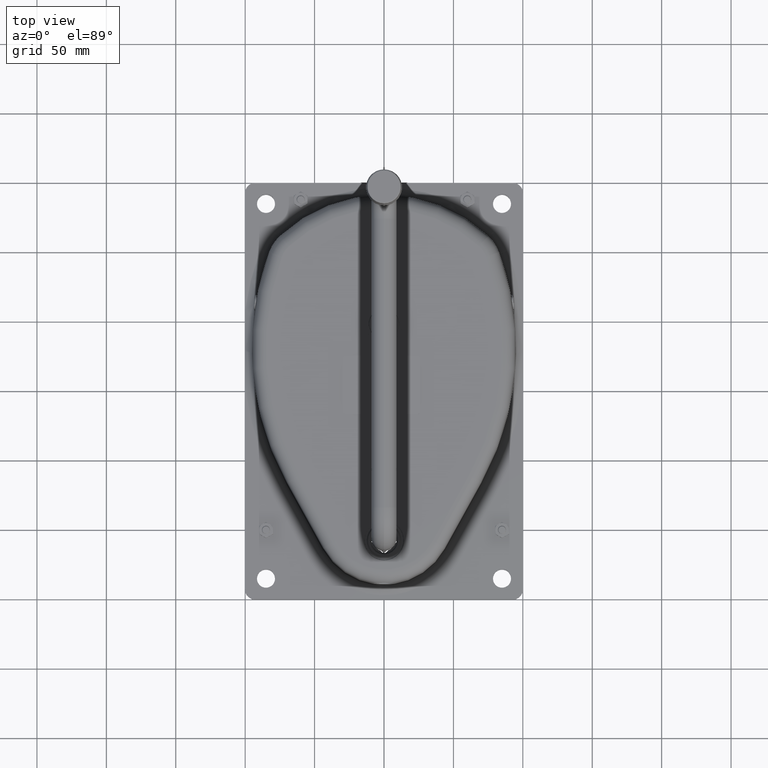
[diagram: clean part render]
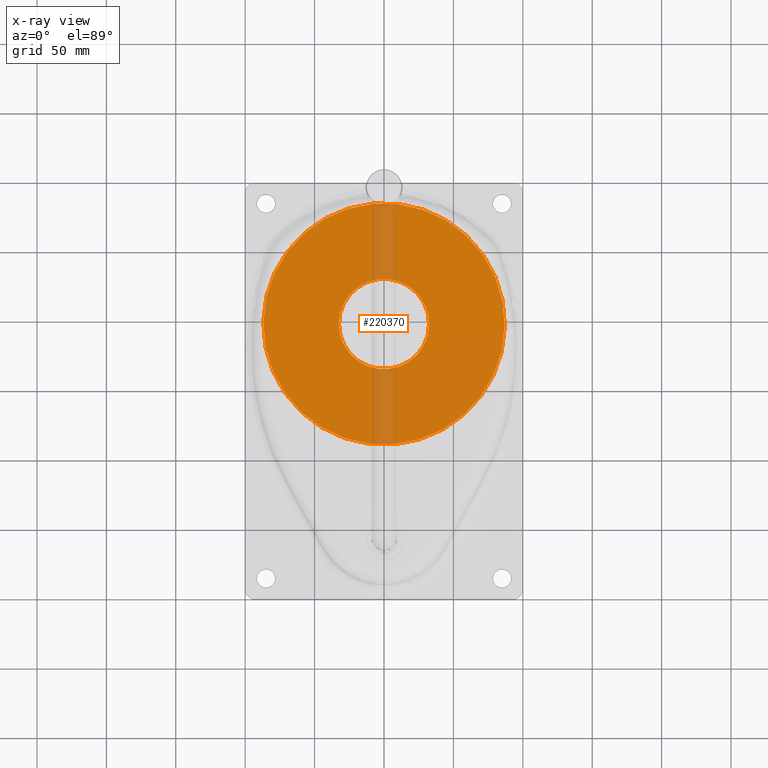
[diagram: x-ray — body ghosted, one internal face saturated and labeled with its STEP entity id]
A machine part, top view, then the same camera in x-ray: the body is ghosted and one INTERNAL B-rep face — a face not visible from any outside direction — is saturated and labeled: STEP entity #220370.
In plain terms, the highlighted planar face has unit normal (0, 0, -1).
Its self-contained STEP definition (entity closure, byte-faithful):
#219980=CARTESIAN_POINT('',(0.,0.,1.));
#219990=DIRECTION('',(0.,0.,1.));
#220000=DIRECTION('',(1.,0.,0.));
#220010=AXIS2_PLACEMENT_3D('',#219980,#219990,#220000);
#220020=PLANE('',#220010);
#220030=CARTESIAN_POINT('',(2.22272199799618E-13,-2.84217191184357E-13,
1.));
#220040=DIRECTION('',(1.11005393228102E-16,-1.93760634617884E-18,-1.));
#220050=DIRECTION('',(0.999847695156391,-0.0174524064372836,
1.11022302462516E-16));
#220060=AXIS2_PLACEMENT_3D('',#220030,#220040,#220050);
#220070=CIRCLE('',#220060,32.5);
#220080=CARTESIAN_POINT('',(32.5,0.,1.));
#220090=VERTEX_POINT('',#220080);
#220100=CARTESIAN_POINT('',(32.4950500925829,-0.567203209212001,1.));
#220110=VERTEX_POINT('',#220100);
#220120=EDGE_CURVE('',#220090,#220110,#220070,.T.);
#220130=ORIENTED_EDGE('',*,*,#220120,.F.);
#220140=CARTESIAN_POINT('',(-32.4950500925825,0.567203209211437,
0.999999999999996));
#220150=VERTEX_POINT('',#220140);
#220160=EDGE_CURVE('',#220110,#220150,#220070,.T.);
#220170=ORIENTED_EDGE('',*,*,#220160,.F.);
#220180=EDGE_CURVE('',#220150,#220090,#220070,.T.);
#220190=ORIENTED_EDGE('',*,*,#220180,.F.);
#220200=EDGE_LOOP('',(#220190,#220170,#220130));
#220210=FACE_BOUND('',#220200,.T.);
#220220=CARTESIAN_POINT('',(1.4210854715202E-14,9.65894031423886E-15,1.)
);
#220230=DIRECTION('',(0.,0.,1.));
#220240=DIRECTION('',(1.,0.,0.));
#220250=AXIS2_PLACEMENT_3D('',#220220,#220230,#220240);
#220260=CIRCLE('',#220250,87.0000000000001);
#220270=CARTESIAN_POINT('',(87.0000000000001,1.0654427152582E-14,1.));
#220280=VERTEX_POINT('',#220270);
#220290=CARTESIAN_POINT('',(-87.0000000000001,0.,1.));
#220300=VERTEX_POINT('',#220290);
#220310=EDGE_CURVE('',#220280,#220300,#220260,.T.);
#220320=ORIENTED_EDGE('',*,*,#220310,.F.);
#220330=EDGE_CURVE('',#220300,#220280,#220260,.T.);
#220340=ORIENTED_EDGE('',*,*,#220330,.F.);
#220350=EDGE_LOOP('',(#220340,#220320));
#220360=FACE_OUTER_BOUND('',#220350,.T.);
#220370=ADVANCED_FACE('',(#220210,#220360),#220020,.F.);